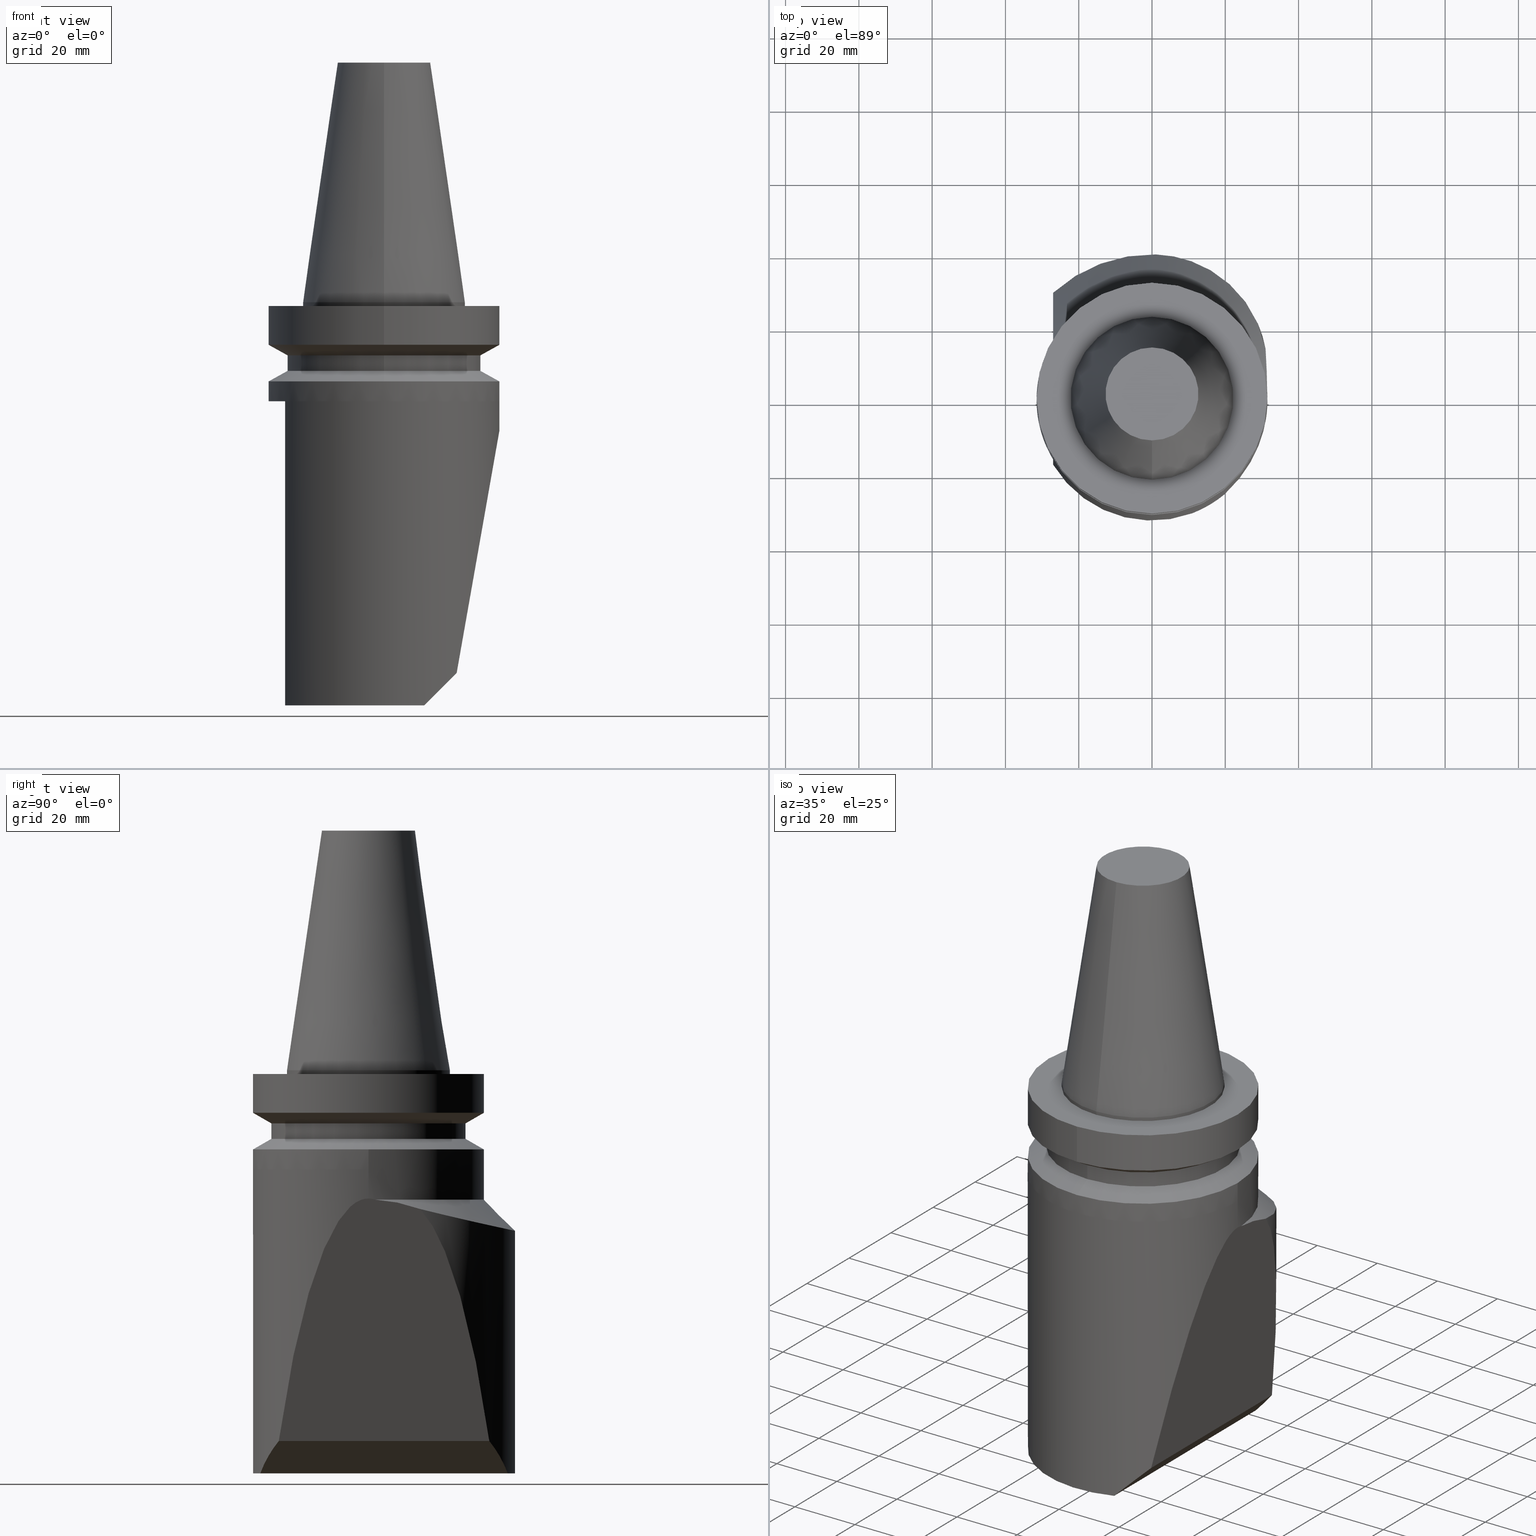
[diagram: canonical four-view strip — front | top / right | iso, engineering-drawing reading convention]
A machine part, canonical four-view strip (front | top / right | iso — engineering-drawing reading convention). The complete STEP part file that produces these views, byte-faithful:
ISO-10303-21;
HEADER;
FILE_DESCRIPTION((''),'1');
FILE_NAME('T:/21_DXF\X2\30C730FC30BF4F5C621057FA6E96\X0\/BBT40M-180-BH20L-110.stp','2017-05-02T05:50:26',(''),(''),'Spatial Interop R21 SP3','Kubotek KeyCreator 2011 V10.0.2 (22737)',' ');
FILE_SCHEMA(('automotive_design'));
ENDSEC;
DATA;
#1=MECHANICAL_DESIGN_GEOMETRIC_PRESENTATION_REPRESENTATION(' ',(#10,#11,#12,#13,#14,#15,#16,#17,#18,#19,#20,#21,#22,#23,#24,#25,#26,#27,#28,#29,#30,#31,#32,#33,#34,#35,#36,#37,#38,#39,#40,#41,#42,#43,#44,#45,#46,#47,#48,#49,#50,#51,#52,#53,#54,#55,#56,#57,#58,#59,#60,#61,#62,#63,#64,#65,#66,#67,#68,#69,#70,#71,#72,#73,#74,#75,#76),#6);
#2=PRODUCT_DEFINITION_CONTEXT('',#77,'design');
#3=APPLICATION_PROTOCOL_DEFINITION('INTERNATIONAL STANDARD','automotive_design',1994,#77);
#4=PRODUCT_CATEGORY_RELATIONSHIP('NONE','NONE',#78,#79);
#5=SHAPE_DEFINITION_REPRESENTATION(#80,#81);
#6= (GEOMETRIC_REPRESENTATION_CONTEXT(3)GLOBAL_UNCERTAINTY_ASSIGNED_CONTEXT((#84))GLOBAL_UNIT_ASSIGNED_CONTEXT((#86,#87,#88))REPRESENTATION_CONTEXT('NONE','WORKSPACE'));
#10=STYLED_ITEM('',(#90,#91),#92);
#11=STYLED_ITEM('',(#93),#94);
#12=STYLED_ITEM('',(#95),#96);
#13=STYLED_ITEM('',(#97),#98);
#14=STYLED_ITEM('',(#99),#100);
#15=STYLED_ITEM('',(#101,#102),#103);
#16=STYLED_ITEM('',(#104),#105);
#17=STYLED_ITEM('',(#106,#107),#108);
#18=STYLED_ITEM('',(#109),#110);
#19=STYLED_ITEM('',(#111),#112);
#20=STYLED_ITEM('',(#113,#114),#115);
#21=STYLED_ITEM('',(#116),#117);
#22=STYLED_ITEM('',(#118,#119),#120);
#23=STYLED_ITEM('',(#121,#122),#123);
#24=STYLED_ITEM('',(#124),#125);
#25=STYLED_ITEM('',(#126),#127);
#26=STYLED_ITEM('',(#128),#129);
#27=STYLED_ITEM('',(#130,#131),#132);
#28=STYLED_ITEM('',(#133),#134);
#29=STYLED_ITEM('',(#135),#136);
#30=STYLED_ITEM('',(#137),#138);
#31=STYLED_ITEM('',(#139),#140);
#32=STYLED_ITEM('',(#141),#142);
#33=STYLED_ITEM('',(#143),#144);
#34=STYLED_ITEM('',(#145),#146);
#35=STYLED_ITEM('',(#147),#148);
#36=STYLED_ITEM('',(#149),#150);
#37=STYLED_ITEM('',(#151,#152),#153);
#38=STYLED_ITEM('',(#154),#155);
#39=STYLED_ITEM('',(#156,#157),#158);
#40=STYLED_ITEM('',(#159),#160);
#41=STYLED_ITEM('',(#161),#162);
#42=STYLED_ITEM('',(#163,#164),#165);
#43=STYLED_ITEM('',(#166,#167),#168);
#44=STYLED_ITEM('',(#169,#170),#171);
#45=STYLED_ITEM('',(#172),#173);
#46=STYLED_ITEM('',(#174),#175);
#47=STYLED_ITEM('',(#176),#177);
#48=STYLED_ITEM('',(#178,#179),#180);
#49=STYLED_ITEM('',(#181,#182),#183);
#50=STYLED_ITEM('',(#184,#185),#186);
#51=STYLED_ITEM('',(#187,#188),#189);
#52=STYLED_ITEM('',(#190),#191);
#53=STYLED_ITEM('',(#192,#193),#194);
#54=STYLED_ITEM('',(#195),#196);
#55=STYLED_ITEM('',(#197),#198);
#56=STYLED_ITEM('',(#199,#200),#201);
#57=STYLED_ITEM('',(#202),#203);
#58=STYLED_ITEM('',(#204),#205);
#59=STYLED_ITEM('',(#206),#207);
#60=STYLED_ITEM('',(#208),#209);
#61=STYLED_ITEM('',(#210),#211);
#62=STYLED_ITEM('',(#212),#213);
#63=STYLED_ITEM('',(#214),#215);
#64=STYLED_ITEM('',(#216),#217);
#65=STYLED_ITEM('',(#218,#219),#220);
#66=STYLED_ITEM('',(#221),#222);
#67=STYLED_ITEM('',(#223,#224),#225);
#68=STYLED_ITEM('',(#226),#227);
#69=STYLED_ITEM('',(#228),#229);
#70=STYLED_ITEM('',(#230),#231);
#71=STYLED_ITEM('',(#232),#233);
#72=STYLED_ITEM('',(#234),#235);
#73=STYLED_ITEM('',(#236,#237),#238);
#74=STYLED_ITEM('',(#239,#240),#241);
#75=STYLED_ITEM('',(#242,#243),#244);
#76=STYLED_ITEM('',(#245),#246);
#77=APPLICATION_CONTEXT(' ');
#78=PRODUCT_CATEGORY('part','NONE');
#79=PRODUCT_RELATED_PRODUCT_CATEGORY('detail',' ',(#247));
#80=PRODUCT_DEFINITION_SHAPE('NONE','NONE',#248);
#81=ADVANCED_BREP_SHAPE_REPRESENTATION('Unnamed[1]',(#92,#249),#6);
#84=UNCERTAINTY_MEASURE_WITH_UNIT(LENGTH_MEASURE(1.0E-006),#86,'','');
#86= (CONVERSION_BASED_UNIT('MILLIMETRE',#252)LENGTH_UNIT()NAMED_UNIT(#255));
#87= (NAMED_UNIT(#257)PLANE_ANGLE_UNIT()SI_UNIT($,.RADIAN.));
#88= (NAMED_UNIT(#257)SOLID_ANGLE_UNIT()SI_UNIT($,.STERADIAN.));
#90=PRESENTATION_STYLE_ASSIGNMENT((#263));
#91=PRESENTATION_STYLE_ASSIGNMENT((#264));
#92=MANIFOLD_SOLID_BREP('Unnamed[1]',#265);
#93=PRESENTATION_STYLE_ASSIGNMENT((#266));
#94=EDGE_CURVE('Unnamed[1]',#267,#267,#268,.T.);
#95=PRESENTATION_STYLE_ASSIGNMENT((#269));
#96=EDGE_CURVE('Unnamed[1]',#270,#270,#271,.T.);
#97=PRESENTATION_STYLE_ASSIGNMENT((#272));
#98=EDGE_CURVE('Unnamed[1]',#273,#274,#275,.T.);
#99=PRESENTATION_STYLE_ASSIGNMENT((#276));
#100=EDGE_CURVE('Unnamed[1]',#277,#278,#279,.T.);
#101=PRESENTATION_STYLE_ASSIGNMENT((#280));
#102=PRESENTATION_STYLE_ASSIGNMENT((#281));
#103=ADVANCED_FACE('Unnamed[1]',(#282),#283,.F.);
#104=PRESENTATION_STYLE_ASSIGNMENT((#284));
#105=EDGE_CURVE('Unnamed[1]',#278,#285,#286,.T.);
#106=PRESENTATION_STYLE_ASSIGNMENT((#287));
#107=PRESENTATION_STYLE_ASSIGNMENT((#288));
#108=ADVANCED_FACE('Unnamed[1]',(#289),#290,.F.);
#109=PRESENTATION_STYLE_ASSIGNMENT((#291));
#110=EDGE_CURVE('Unnamed[1]',#292,#293,#294,.T.);
#111=PRESENTATION_STYLE_ASSIGNMENT((#295));
#112=EDGE_CURVE('Unnamed[1]',#296,#297,#298,.T.);
#113=PRESENTATION_STYLE_ASSIGNMENT((#299));
#114=PRESENTATION_STYLE_ASSIGNMENT((#300));
#115=ADVANCED_FACE('Unnamed[1]',(#301),#302,.T.);
#116=PRESENTATION_STYLE_ASSIGNMENT((#303));
#117=EDGE_CURVE('Unnamed[1]',#304,#304,#305,.T.);
#118=PRESENTATION_STYLE_ASSIGNMENT((#306));
#119=PRESENTATION_STYLE_ASSIGNMENT((#307));
#120=ADVANCED_FACE('Unnamed[1]',(#308,#309),#310,.T.);
#121=PRESENTATION_STYLE_ASSIGNMENT((#311));
#122=PRESENTATION_STYLE_ASSIGNMENT((#312));
#123=ADVANCED_FACE('Unnamed[1]',(#313),#314,.F.);
#124=PRESENTATION_STYLE_ASSIGNMENT((#315));
#125=EDGE_CURVE('Unnamed[1]',#316,#274,#317,.T.);
#126=PRESENTATION_STYLE_ASSIGNMENT((#318));
#127=EDGE_CURVE('Unnamed[1]',#319,#319,#320,.T.);
#128=PRESENTATION_STYLE_ASSIGNMENT((#321));
#129=EDGE_CURVE('Unnamed[1]',#322,#322,#323,.T.);
#130=PRESENTATION_STYLE_ASSIGNMENT((#324));
#131=PRESENTATION_STYLE_ASSIGNMENT((#325));
#132=ADVANCED_FACE('Unnamed[1]',(#326),#327,.F.);
#133=PRESENTATION_STYLE_ASSIGNMENT((#328));
#134=EDGE_CURVE('Unnamed[1]',#329,#330,#331,.T.);
#135=PRESENTATION_STYLE_ASSIGNMENT((#332));
#136=EDGE_CURVE('Unnamed[1]',#333,#334,#335,.T.);
#137=PRESENTATION_STYLE_ASSIGNMENT((#336));
#138=EDGE_CURVE('Unnamed[1]',#337,#338,#339,.T.);
#139=PRESENTATION_STYLE_ASSIGNMENT((#340));
#140=EDGE_CURVE('Unnamed[1]',#330,#341,#342,.T.);
#141=PRESENTATION_STYLE_ASSIGNMENT((#343));
#142=EDGE_CURVE('Unnamed[1]',#274,#278,#344,.T.);
#143=PRESENTATION_STYLE_ASSIGNMENT((#345));
#144=EDGE_CURVE('Unnamed[1]',#273,#296,#346,.T.);
#145=PRESENTATION_STYLE_ASSIGNMENT((#347));
#146=EDGE_CURVE('Unnamed[1]',#348,#349,#350,.T.);
#147=PRESENTATION_STYLE_ASSIGNMENT((#351));
#148=EDGE_CURVE('Unnamed[1]',#352,#352,#353,.T.);
#149=PRESENTATION_STYLE_ASSIGNMENT((#354));
#150=EDGE_CURVE('Unnamed[1]',#349,#297,#355,.T.);
#151=PRESENTATION_STYLE_ASSIGNMENT((#356));
#152=PRESENTATION_STYLE_ASSIGNMENT((#357));
#153=ADVANCED_FACE('Unnamed[1]',(#358,#359),#360,.T.);
#154=PRESENTATION_STYLE_ASSIGNMENT((#361));
#155=EDGE_CURVE('Unnamed[1]',#334,#362,#363,.T.);
#156=PRESENTATION_STYLE_ASSIGNMENT((#364));
#157=PRESENTATION_STYLE_ASSIGNMENT((#365));
#158=ADVANCED_FACE('Unnamed[1]',(#366),#367,.T.);
#159=PRESENTATION_STYLE_ASSIGNMENT((#368));
#160=EDGE_CURVE('Unnamed[1]',#293,#369,#370,.T.);
#161=PRESENTATION_STYLE_ASSIGNMENT((#371));
#162=EDGE_CURVE('Unnamed[1]',#337,#348,#372,.T.);
#163=PRESENTATION_STYLE_ASSIGNMENT((#373));
#164=PRESENTATION_STYLE_ASSIGNMENT((#374));
#165=ADVANCED_FACE('Unnamed[1]',(#375),#376,.T.);
#166=PRESENTATION_STYLE_ASSIGNMENT((#377));
#167=PRESENTATION_STYLE_ASSIGNMENT((#378));
#168=ADVANCED_FACE('Unnamed[1]',(#379,#380),#381,.T.);
#169=PRESENTATION_STYLE_ASSIGNMENT((#382));
#170=PRESENTATION_STYLE_ASSIGNMENT((#383));
#171=ADVANCED_FACE('Unnamed[1]',(#384),#385,.T.);
#172=PRESENTATION_STYLE_ASSIGNMENT((#386));
#173=EDGE_CURVE('Unnamed[1]',#285,#337,#387,.T.);
#174=PRESENTATION_STYLE_ASSIGNMENT((#388));
#175=EDGE_CURVE('Unnamed[1]',#389,#389,#390,.T.);
#176=PRESENTATION_STYLE_ASSIGNMENT((#391));
#177=EDGE_CURVE('Unnamed[1]',#316,#392,#393,.T.);
#178=PRESENTATION_STYLE_ASSIGNMENT((#394));
#179=PRESENTATION_STYLE_ASSIGNMENT((#395));
#180=ADVANCED_FACE('Unnamed[1]',(#396,#397),#398,.T.);
#181=PRESENTATION_STYLE_ASSIGNMENT((#399));
#182=PRESENTATION_STYLE_ASSIGNMENT((#400));
#183=ADVANCED_FACE('Unnamed[1]',(#401,#402),#403,.T.);
#184=PRESENTATION_STYLE_ASSIGNMENT((#404));
#185=PRESENTATION_STYLE_ASSIGNMENT((#405));
#186=ADVANCED_FACE('Unnamed[1]',(#406),#407,.F.);
#187=PRESENTATION_STYLE_ASSIGNMENT((#408));
#188=PRESENTATION_STYLE_ASSIGNMENT((#409));
#189=ADVANCED_FACE('Unnamed[1]',(#410),#411,.F.);
#190=PRESENTATION_STYLE_ASSIGNMENT((#412));
#191=EDGE_CURVE('Unnamed[1]',#413,#413,#414,.T.);
#192=PRESENTATION_STYLE_ASSIGNMENT((#415));
#193=PRESENTATION_STYLE_ASSIGNMENT((#416));
#194=ADVANCED_FACE('Unnamed[1]',(#417),#418,.T.);
#195=PRESENTATION_STYLE_ASSIGNMENT((#419));
#196=EDGE_CURVE('Unnamed[1]',#420,#421,#422,.T.);
#197=PRESENTATION_STYLE_ASSIGNMENT((#423));
#198=EDGE_CURVE('Unnamed[1]',#421,#362,#424,.T.);
#199=PRESENTATION_STYLE_ASSIGNMENT((#425));
#200=PRESENTATION_STYLE_ASSIGNMENT((#426));
#201=ADVANCED_FACE('Unnamed[1]',(#427),#428,.T.);
#202=PRESENTATION_STYLE_ASSIGNMENT((#429));
#203=EDGE_CURVE('Unnamed[1]',#277,#273,#430,.T.);
#204=PRESENTATION_STYLE_ASSIGNMENT((#431));
#205=EDGE_CURVE('Unnamed[1]',#329,#349,#432,.T.);
#206=PRESENTATION_STYLE_ASSIGNMENT((#433));
#207=EDGE_CURVE('Unnamed[1]',#341,#316,#434,.T.);
#208=PRESENTATION_STYLE_ASSIGNMENT((#435));
#209=EDGE_CURVE('Unnamed[1]',#338,#330,#436,.T.);
#210=PRESENTATION_STYLE_ASSIGNMENT((#437));
#211=EDGE_CURVE('Unnamed[1]',#296,#341,#438,.T.);
#212=PRESENTATION_STYLE_ASSIGNMENT((#439));
#213=EDGE_CURVE('Unnamed[1]',#362,#292,#440,.T.);
#214=PRESENTATION_STYLE_ASSIGNMENT((#441));
#215=EDGE_CURVE('Unnamed[1]',#369,#333,#442,.T.);
#216=PRESENTATION_STYLE_ASSIGNMENT((#443));
#217=EDGE_CURVE('Unnamed[1]',#420,#277,#444,.T.);
#218=PRESENTATION_STYLE_ASSIGNMENT((#445));
#219=PRESENTATION_STYLE_ASSIGNMENT((#446));
#220=ADVANCED_FACE('Unnamed[1]',(#447),#448,.T.);
#221=PRESENTATION_STYLE_ASSIGNMENT((#449));
#222=EDGE_CURVE('Unnamed[1]',#338,#392,#450,.T.);
#223=PRESENTATION_STYLE_ASSIGNMENT((#451));
#224=PRESENTATION_STYLE_ASSIGNMENT((#452));
#225=ADVANCED_FACE('Unnamed[1]',(#453,#454),#455,.T.);
#226=PRESENTATION_STYLE_ASSIGNMENT((#456));
#227=EDGE_CURVE('Unnamed[1]',#421,#333,#457,.T.);
#228=PRESENTATION_STYLE_ASSIGNMENT((#458));
#229=EDGE_CURVE('Unnamed[1]',#369,#420,#459,.T.);
#230=PRESENTATION_STYLE_ASSIGNMENT((#460));
#231=EDGE_CURVE('Unnamed[1]',#297,#329,#461,.T.);
#232=PRESENTATION_STYLE_ASSIGNMENT((#462));
#233=EDGE_CURVE('Unnamed[1]',#392,#285,#463,.T.);
#234=PRESENTATION_STYLE_ASSIGNMENT((#464));
#235=EDGE_CURVE('Unnamed[1]',#348,#292,#465,.T.);
#236=PRESENTATION_STYLE_ASSIGNMENT((#466));
#237=PRESENTATION_STYLE_ASSIGNMENT((#467));
#238=ADVANCED_FACE('Unnamed[1]',(#468,#469),#470,.T.);
#239=PRESENTATION_STYLE_ASSIGNMENT((#471));
#240=PRESENTATION_STYLE_ASSIGNMENT((#472));
#241=ADVANCED_FACE('Unnamed[1]',(#473,#474),#475,.T.);
#242=PRESENTATION_STYLE_ASSIGNMENT((#476));
#243=PRESENTATION_STYLE_ASSIGNMENT((#477));
#244=ADVANCED_FACE('Unnamed[1]',(#478),#479,.T.);
#245=PRESENTATION_STYLE_ASSIGNMENT((#480));
#246=EDGE_CURVE('Unnamed[1]',#293,#334,#481,.T.);
#247=PRODUCT('Unnamed[1]','Unnamed[1]','PART-Unnamed[1]-DESC',(#482));
#248=PRODUCT_DEFINITION('NONE','NONE',#483,#2);
#249=AXIS2_PLACEMENT_3D('',#484,#485,#486);
#252=LENGTH_MEASURE_WITH_UNIT(LENGTH_MEASURE(1.0),#487);
#255=DIMENSIONAL_EXPONENTS(1.0,0.0,0.0,0.0,0.0,0.0,0.0);
#257=DIMENSIONAL_EXPONENTS(0.0,0.0,0.0,0.0,0.0,0.0,0.0);
#263=SURFACE_STYLE_USAGE(.BOTH.,#488);
#264=CURVE_STYLE('',#489,POSITIVE_LENGTH_MEASURE(1000.0),#490);
#265=CLOSED_SHELL('',(#220,#132,#186,#103,#158,#238,#171,#123,#165,#108,#189,#115,#244,#194,#153,#241,#180,#168,#120,#225,#183,#201));
#266=CURVE_STYLE('',#491,POSITIVE_LENGTH_MEASURE(1000.0),#492);
#267=VERTEX_POINT('',#493);
#268=CIRCLE('',#494,31.5000000000001);
#269=CURVE_STYLE('',#495,POSITIVE_LENGTH_MEASURE(1000.0),#496);
#270=VERTEX_POINT('',#497);
#271=CIRCLE('',#498,31.5000000000001);
#272=CURVE_STYLE('',#499,POSITIVE_LENGTH_MEASURE(1000.0),#500);
#273=VERTEX_POINT('',#501);
#274=VERTEX_POINT('',#502);
#275=CIRCLE('',#503,39.9999999999955);
#276=CURVE_STYLE('',#504,POSITIVE_LENGTH_MEASURE(1000.0),#505);
#277=VERTEX_POINT('',#506);
#278=VERTEX_POINT('',#507);
#279=CIRCLE('',#508,40.0000000000002);
#280=SURFACE_STYLE_USAGE(.BOTH.,#509);
#281=CURVE_STYLE('',#510,POSITIVE_LENGTH_MEASURE(1000.0),#511);
#282=FACE_OUTER_BOUND('',#512,.T.);
#283=PLANE('',#513);
#284=CURVE_STYLE('',#514,POSITIVE_LENGTH_MEASURE(1000.0),#515);
#285=VERTEX_POINT('',#516);
#286=CIRCLE('',#517,31.5);
#287=SURFACE_STYLE_USAGE(.BOTH.,#518);
#288=CURVE_STYLE('',#519,POSITIVE_LENGTH_MEASURE(1000.0),#520);
#289=FACE_OUTER_BOUND('',#521,.T.);
#290=PLANE('',#522);
#291=CURVE_STYLE('',#523,POSITIVE_LENGTH_MEASURE(1000.0),#524);
#292=VERTEX_POINT('',#525);
#293=VERTEX_POINT('',#526);
#294=LINE('',#527,#528);
#295=CURVE_STYLE('',#529,POSITIVE_LENGTH_MEASURE(1000.0),#530);
#296=VERTEX_POINT('',#531);
#297=VERTEX_POINT('',#532);
#298=LINE('',#533,#534);
#299=SURFACE_STYLE_USAGE(.BOTH.,#535);
#300=CURVE_STYLE('',#536,POSITIVE_LENGTH_MEASURE(1000.0),#537);
#301=FACE_OUTER_BOUND('',#538,.T.);
#302=CYLINDRICAL_SURFACE('',#539,31.5);
#303=CURVE_STYLE('',#540,POSITIVE_LENGTH_MEASURE(1000.0),#541);
#304=VERTEX_POINT('',#542);
#305=CIRCLE('',#543,22.2250000000001);
#306=SURFACE_STYLE_USAGE(.BOTH.,#544);
#307=CURVE_STYLE('',#545,POSITIVE_LENGTH_MEASURE(1000.0),#546);
#308=FACE_BOUND('',#547,.T.);
#309=FACE_BOUND('',#548,.T.);
#310=CONICAL_SURFACE('',#549,29.0000000000001,1.0471975511966);
#311=SURFACE_STYLE_USAGE(.BOTH.,#550);
#312=CURVE_STYLE('',#551,POSITIVE_LENGTH_MEASURE(1000.0),#552);
#313=FACE_OUTER_BOUND('',#553,.T.);
#314=PLANE('',#554);
#315=CURVE_STYLE('',#555,POSITIVE_LENGTH_MEASURE(1000.0),#556);
#316=VERTEX_POINT('',#557);
#317=B_SPLINE_CURVE_WITH_KNOTS('',3,(#558,#559,#560,#561,#562,#563,#564,#565,#566,#567,#568,#569,#570,#571,#572,#573,#574,#575,#576,#577,#578,#579,#580,#581,#582,#583),.UNSPECIFIED.,.F.,.F.,(4,2,2,2,2,2,2,2,2,2,2,2,4),(13.5523629707951,16.8695139117605,20.2434166941126,23.6173194764646,26.9912222588167,30.6819251575849,34.372628056353,38.0633309551212,41.7540338538893,45.4447367526574,49.1354396514256,52.8261425501937,55.5120066657798),.UNSPECIFIED.);
#318=CURVE_STYLE('',#584,POSITIVE_LENGTH_MEASURE(1000.0),#585);
#319=VERTEX_POINT('',#586);
#320=CIRCLE('',#587,26.5000000000001);
#321=CURVE_STYLE('',#588,POSITIVE_LENGTH_MEASURE(1000.0),#589);
#322=VERTEX_POINT('',#590);
#323=CIRCLE('',#591,12.6875000000001);
#324=SURFACE_STYLE_USAGE(.BOTH.,#592);
#325=CURVE_STYLE('',#593,POSITIVE_LENGTH_MEASURE(1000.0),#594);
#326=FACE_OUTER_BOUND('',#595,.T.);
#327=PLANE('',#596);
#328=CURVE_STYLE('',#597,POSITIVE_LENGTH_MEASURE(1000.0),#598);
#329=VERTEX_POINT('',#599);
#330=VERTEX_POINT('',#600);
#331=LINE('',#601,#602);
#332=CURVE_STYLE('',#603,POSITIVE_LENGTH_MEASURE(1000.0),#604);
#333=VERTEX_POINT('',#605);
#334=VERTEX_POINT('',#606);
#335=LINE('',#607,#608);
#336=CURVE_STYLE('',#609,POSITIVE_LENGTH_MEASURE(1000.0),#610);
#337=VERTEX_POINT('',#611);
#338=VERTEX_POINT('',#612);
#339=ELLIPSE('',#613,44.5477272147525,31.5);
#340=CURVE_STYLE('',#614,POSITIVE_LENGTH_MEASURE(1000.0),#615);
#341=VERTEX_POINT('',#616);
#342=ELLIPSE('',#617,181.401270219024,31.4999999999999);
#343=CURVE_STYLE('',#618,POSITIVE_LENGTH_MEASURE(1000.0),#619);
#344=LINE('',#620,#621);
#345=CURVE_STYLE('',#622,POSITIVE_LENGTH_MEASURE(1000.0),#623);
#346=(B_SPLINE_CURVE(3,(#625,#626,#627,#628,#629,#630,#631),.UNSPECIFIED.,.F.,.F.)B_SPLINE_CURVE_WITH_KNOTS((4,3,4),(-0.221250303881659,5.25036179970138,15.7860949839274),.UNSPECIFIED.)RATIONAL_B_SPLINE_CURVE((1.0,1.0,1.0,1.0,1.00262050936758,1.00001735789944,0.992190545595578))BOUNDED_CURVE()REPRESENTATION_ITEM('')GEOMETRIC_REPRESENTATION_ITEM()CURVE());
#347=CURVE_STYLE('',#638,POSITIVE_LENGTH_MEASURE(1000.0),#639);
#348=VERTEX_POINT('',#640);
#349=VERTEX_POINT('',#641);
#350=LINE('',#642,#643);
#351=CURVE_STYLE('',#644,POSITIVE_LENGTH_MEASURE(1000.0),#645);
#352=VERTEX_POINT('',#646);
#353=CIRCLE('',#647,31.5000000000001);
#354=CURVE_STYLE('',#648,POSITIVE_LENGTH_MEASURE(1000.0),#649);
#355=LINE('',#650,#651);
#356=SURFACE_STYLE_USAGE(.BOTH.,#652);
#357=CURVE_STYLE('',#653,POSITIVE_LENGTH_MEASURE(1000.0),#654);
#358=FACE_BOUND('',#655,.T.);
#359=FACE_BOUND('',#656,.T.);
#360=CONICAL_SURFACE('',#657,17.4562500000001,0.14481249823894);
#361=CURVE_STYLE('',#658,POSITIVE_LENGTH_MEASURE(1000.0),#659);
#362=VERTEX_POINT('',#660);
#363=LINE('',#661,#662);
#364=SURFACE_STYLE_USAGE(.BOTH.,#663);
#365=CURVE_STYLE('',#664,POSITIVE_LENGTH_MEASURE(1000.0),#665);
#366=FACE_OUTER_BOUND('',#666,.T.);
#367=CYLINDRICAL_SURFACE('',#667,31.5);
#368=CURVE_STYLE('',#668,POSITIVE_LENGTH_MEASURE(1000.0),#669);
#369=VERTEX_POINT('',#670);
#370=LINE('',#671,#672);
#371=CURVE_STYLE('',#673,POSITIVE_LENGTH_MEASURE(1000.0),#674);
#372=CIRCLE('',#675,31.5);
#373=SURFACE_STYLE_USAGE(.BOTH.,#676);
#374=CURVE_STYLE('',#677,POSITIVE_LENGTH_MEASURE(1000.0),#678);
#375=FACE_OUTER_BOUND('',#679,.T.);
#376=PLANE('',#680);
#377=SURFACE_STYLE_USAGE(.BOTH.,#681);
#378=CURVE_STYLE('',#682,POSITIVE_LENGTH_MEASURE(1000.0),#683);
#379=FACE_BOUND('',#684,.T.);
#380=FACE_BOUND('',#685,.T.);
#381=CYLINDRICAL_SURFACE('',#686,31.5000000000001);
#382=SURFACE_STYLE_USAGE(.BOTH.,#687);
#383=CURVE_STYLE('',#688,POSITIVE_LENGTH_MEASURE(1000.0),#689);
#384=FACE_OUTER_BOUND('',#690,.T.);
#385=CONICAL_SURFACE('',#691,35.7499999999976,0.785398163397449);
#386=CURVE_STYLE('',#692,POSITIVE_LENGTH_MEASURE(1000.0),#693);
#387=LINE('',#694,#695);
#388=CURVE_STYLE('',#696,POSITIVE_LENGTH_MEASURE(1000.0),#697);
#389=VERTEX_POINT('',#698);
#390=CIRCLE('',#699,22.2250000000001);
#391=CURVE_STYLE('',#700,POSITIVE_LENGTH_MEASURE(1000.0),#701);
#392=VERTEX_POINT('',#702);
#393=ELLIPSE('',#703,181.401270219024,31.5);
#394=SURFACE_STYLE_USAGE(.BOTH.,#704);
#395=CURVE_STYLE('',#705,POSITIVE_LENGTH_MEASURE(1000.0),#706);
#396=FACE_OUTER_BOUND('',#707,.T.);
#397=FACE_BOUND('',#708,.T.);
#398=PLANE('',#709);
#399=SURFACE_STYLE_USAGE(.BOTH.,#710);
#400=CURVE_STYLE('',#711,POSITIVE_LENGTH_MEASURE(1000.0),#712);
#401=FACE_BOUND('',#713,.T.);
#402=FACE_BOUND('',#714,.T.);
#403=CONICAL_SURFACE('',#715,29.0000000000001,1.0471975511966);
#404=SURFACE_STYLE_USAGE(.BOTH.,#716);
#405=CURVE_STYLE('',#717,POSITIVE_LENGTH_MEASURE(1000.0),#718);
#406=FACE_OUTER_BOUND('',#719,.T.);
#407=PLANE('',#720);
#408=SURFACE_STYLE_USAGE(.BOTH.,#721);
#409=CURVE_STYLE('',#722,POSITIVE_LENGTH_MEASURE(1000.0),#723);
#410=FACE_OUTER_BOUND('',#724,.T.);
#411=PLANE('',#725);
#412=CURVE_STYLE('',#726,POSITIVE_LENGTH_MEASURE(1000.0),#727);
#413=VERTEX_POINT('',#728);
#414=CIRCLE('',#729,26.5000000000001);
#415=SURFACE_STYLE_USAGE(.BOTH.,#730);
#416=CURVE_STYLE('',#731,POSITIVE_LENGTH_MEASURE(1000.0),#732);
#417=FACE_OUTER_BOUND('',#733,.T.);
#418=PLANE('',#734);
#419=CURVE_STYLE('',#735,POSITIVE_LENGTH_MEASURE(1000.0),#736);
#420=VERTEX_POINT('',#737);
#421=VERTEX_POINT('',#738);
#422=LINE('',#739,#740);
#423=CURVE_STYLE('',#741,POSITIVE_LENGTH_MEASURE(1000.0),#742);
#424=LINE('',#743,#744);
#425=SURFACE_STYLE_USAGE(.BOTH.,#745);
#426=CURVE_STYLE('',#746,POSITIVE_LENGTH_MEASURE(1000.0),#747);
#427=FACE_OUTER_BOUND('',#748,.T.);
#428=CYLINDRICAL_SURFACE('',#749,39.9999999999978);
#429=CURVE_STYLE('',#750,POSITIVE_LENGTH_MEASURE(1000.0),#751);
#430=LINE('',#752,#753);
#431=CURVE_STYLE('',#754,POSITIVE_LENGTH_MEASURE(1000.0),#755);
#432=CIRCLE('',#756,31.5);
#433=CURVE_STYLE('',#757,POSITIVE_LENGTH_MEASURE(1000.0),#758);
#434=(B_SPLINE_CURVE(2,(#760,#761,#762),.UNSPECIFIED.,.F.,.F.)B_SPLINE_CURVE_WITH_KNOTS((3,3),(9.46221466645807E-013,13.8067711859045),.UNSPECIFIED.)RATIONAL_B_SPLINE_CURVE((1.0,1.02443991961309,1.02327325416865))BOUNDED_CURVE()REPRESENTATION_ITEM('')GEOMETRIC_REPRESENTATION_ITEM()CURVE());
#435=CURVE_STYLE('',#769,POSITIVE_LENGTH_MEASURE(1000.0),#770);
#436=ELLIPSE('',#771,181.401270219024,31.5);
#437=CURVE_STYLE('',#772,POSITIVE_LENGTH_MEASURE(1000.0),#773);
#438=CIRCLE('',#774,31.4999999999998);
#439=CURVE_STYLE('',#775,POSITIVE_LENGTH_MEASURE(1000.0),#776);
#440=LINE('',#777,#778);
#441=CURVE_STYLE('',#779,POSITIVE_LENGTH_MEASURE(1000.0),#780);
#442=LINE('',#781,#782);
#443=CURVE_STYLE('',#783,POSITIVE_LENGTH_MEASURE(1000.0),#784);
#444=LINE('',#785,#786);
#445=SURFACE_STYLE_USAGE(.BOTH.,#787);
#446=CURVE_STYLE('',#788,POSITIVE_LENGTH_MEASURE(1000.0),#789);
#447=FACE_OUTER_BOUND('',#790,.T.);
#448=PLANE('',#791);
#449=CURVE_STYLE('',#792,POSITIVE_LENGTH_MEASURE(1000.0),#793);
#450=LINE('',#794,#795);
#451=SURFACE_STYLE_USAGE(.BOTH.,#796);
#452=CURVE_STYLE('',#797,POSITIVE_LENGTH_MEASURE(1000.0),#798);
#453=FACE_BOUND('',#799,.T.);
#454=FACE_BOUND('',#800,.T.);
#455=CYLINDRICAL_SURFACE('',#801,26.5000000000001);
#456=CURVE_STYLE('',#802,POSITIVE_LENGTH_MEASURE(1000.0),#803);
#457=LINE('',#804,#805);
#458=CURVE_STYLE('',#806,POSITIVE_LENGTH_MEASURE(1000.0),#807);
#459=LINE('',#808,#809);
#460=CURVE_STYLE('',#810,POSITIVE_LENGTH_MEASURE(1000.0),#811);
#461=CIRCLE('',#812,31.5000000000001);
#462=CURVE_STYLE('',#813,POSITIVE_LENGTH_MEASURE(1000.0),#814);
#463=ELLIPSE('',#815,44.5477272147525,31.5);
#464=CURVE_STYLE('',#816,POSITIVE_LENGTH_MEASURE(1000.0),#817);
#465=LINE('',#818,#819);
#466=SURFACE_STYLE_USAGE(.BOTH.,#820);
#467=CURVE_STYLE('',#821,POSITIVE_LENGTH_MEASURE(1000.0),#822);
#468=FACE_BOUND('',#823,.T.);
#469=FACE_BOUND('',#824,.T.);
#470=CYLINDRICAL_SURFACE('',#825,31.4999999999999);
#471=SURFACE_STYLE_USAGE(.BOTH.,#826);
#472=CURVE_STYLE('',#827,POSITIVE_LENGTH_MEASURE(1000.0),#828);
#473=FACE_BOUND('',#829,.T.);
#474=FACE_BOUND('',#830,.T.);
#475=CYLINDRICAL_SURFACE('',#831,22.2250000000001);
#476=SURFACE_STYLE_USAGE(.BOTH.,#832);
#477=CURVE_STYLE('',#833,POSITIVE_LENGTH_MEASURE(1000.0),#834);
#478=FACE_OUTER_BOUND('',#835,.T.);
#479=PLANE('',#836);
#480=CURVE_STYLE('',#837,POSITIVE_LENGTH_MEASURE(1000.0),#838);
#481=LINE('',#839,#840);
#482=PRODUCT_CONTEXT('',#77,'mechanical');
#483=PRODUCT_DEFINITION_FORMATION_WITH_SPECIFIED_SOURCE(' ','NONE',#247,.NOT_KNOWN.);
#484=CARTESIAN_POINT('',(0.0,0.0,0.0));
#485=DIRECTION('',(0.0,0.0,1.0));
#486=DIRECTION('',(1.0,0.0,0.0));
#487= (NAMED_UNIT(#255)LENGTH_UNIT()SI_UNIT(.MILLI.,.METRE.));
#488=SURFACE_SIDE_STYLE('',(#842));
#489=DRAUGHTING_PRE_DEFINED_CURVE_FONT('continuous');
#490=COLOUR_RGB('',0.0,1.0,0.0);
#491=DRAUGHTING_PRE_DEFINED_CURVE_FONT('continuous');
#492=COLOUR_RGB('',0.0,1.0,0.0);
#493=CARTESIAN_POINT('',(-3.91886975727154E-015,-31.5000000000001,-0.999999999999882));
#494=AXIS2_PLACEMENT_3D('',#843,#844,#845);
#495=DRAUGHTING_PRE_DEFINED_CURVE_FONT('continuous');
#496=COLOUR_RGB('',0.0,1.0,0.0);
#497=CARTESIAN_POINT('',(31.4999999533057,0.00171515177132035,-21.5999999999999));
#498=AXIS2_PLACEMENT_3D('',#846,#847,#848);
#499=DRAUGHTING_PRE_DEFINED_CURVE_FONT('continuous');
#500=COLOUR_RGB('',0.0,1.0,0.0);
#501=CARTESIAN_POINT('',(-27.0000000001167,29.5127091266345,-43.799999999997));
#502=CARTESIAN_POINT('',(1.00783010340634,39.9873014653691,-43.799999999997));
#503=AXIS2_PLACEMENT_3D('',#849,#850,#851);
#504=DRAUGHTING_PRE_DEFINED_CURVE_FONT('continuous');
#505=COLOUR_RGB('',0.0,1.0,0.0);
#506=CARTESIAN_POINT('',(-27.0000000001167,29.5127091266377,-110.000000000002));
#507=CARTESIAN_POINT('',(1.0078301027153,39.9873014653912,-109.999999999997));
#508=AXIS2_PLACEMENT_3D('',#852,#853,#854);
#509=SURFACE_SIDE_STYLE('',(#855));
#510=DRAUGHTING_PRE_DEFINED_CURVE_FONT('continuous');
#511=COLOUR_RGB('',0.0,1.0,0.0);
#512=EDGE_LOOP('',(#856,#857,#858,#859));
#513=AXIS2_PLACEMENT_3D('',#860,#861,#862);
#514=DRAUGHTING_PRE_DEFINED_CURVE_FONT('continuous');
#515=COLOUR_RGB('',0.0,1.0,0.0);
#516=CARTESIAN_POINT('',(11.0,38.0203724434856,-110.0));
#517=AXIS2_PLACEMENT_3D('',#863,#864,#865);
#518=SURFACE_SIDE_STYLE('',(#866));
#519=DRAUGHTING_PRE_DEFINED_CURVE_FONT('continuous');
#520=COLOUR_RGB('',0.0,1.0,0.0);
#521=EDGE_LOOP('',(#867,#868,#869,#870));
#522=AXIS2_PLACEMENT_3D('',#871,#872,#873);
#523=DRAUGHTING_PRE_DEFINED_CURVE_FONT('continuous');
#524=COLOUR_RGB('',0.0,1.0,0.0);
#525=CARTESIAN_POINT('',(-27.0000000001169,0.00342815723780592,-110.0));
#526=CARTESIAN_POINT('',(-7.00000000011688,0.00342815723779767,-110.0));
#527=CARTESIAN_POINT('',(-12.3088000000584,0.00342815723780146,-110.0));
#528=VECTOR('',#874,1.0);
#529=DRAUGHTING_PRE_DEFINED_CURVE_FONT('continuous');
#530=COLOUR_RGB('',0.0,1.0,0.0);
#531=CARTESIAN_POINT('',(-27.0000000001168,16.2249807393932,-35.3000000000013));
#532=CARTESIAN_POINT('',(-27.0000000001168,16.2249807393938,-26.9999999999999));
#533=CARTESIAN_POINT('',(-27.0000000001168,16.2249807393935,-28.4500000000006));
#534=VECTOR('',#875,1.0);
#535=SURFACE_SIDE_STYLE('',(#876));
#536=DRAUGHTING_PRE_DEFINED_CURVE_FONT('continuous');
#537=COLOUR_RGB('',0.0,1.0,0.0);
#538=EDGE_LOOP('',(#877,#878,#879,#880,#881));
#539=AXIS2_PLACEMENT_3D('',#882,#883,#884);
#540=DRAUGHTING_PRE_DEFINED_CURVE_FONT('continuous');
#541=COLOUR_RGB('',0.0,1.0,0.0);
#542=CARTESIAN_POINT('',(-2.721777511105E-015,-22.2250000000001,1.16408615232721E-013));
#543=AXIS2_PLACEMENT_3D('',#885,#886,#887);
#544=SURFACE_SIDE_STYLE('',(#888));
#545=DRAUGHTING_PRE_DEFINED_CURVE_FONT('continuous');
#546=COLOUR_RGB('',0.0,1.0,0.0);
#547=EDGE_LOOP('',(#889));
#548=EDGE_LOOP('',(#890));
#549=AXIS2_PLACEMENT_3D('',#891,#892,#893);
#550=SURFACE_SIDE_STYLE('',(#894));
#551=DRAUGHTING_PRE_DEFINED_CURVE_FONT('continuous');
#552=COLOUR_RGB('',0.0,1.0,0.0);
#553=EDGE_LOOP('',(#895,#896,#897,#898));
#554=AXIS2_PLACEMENT_3D('',#899,#900,#901);
#555=DRAUGHTING_PRE_DEFINED_CURVE_FONT('continuous');
#556=COLOUR_RGB('',0.0,1.0,0.0);
#557=CARTESIAN_POINT('',(30.9958754829096,14.1164222816535,-37.8590322085949));
#558=CARTESIAN_POINT('',(30.9958753131781,14.1164222557077,-37.8590321894029));
#559=CARTESIAN_POINT('',(30.793817664624,15.2321819400384,-38.1376004738719));
#560=CARTESIAN_POINT('',(30.531052716232,16.3386153421072,-38.4104099191008));
#561=CARTESIAN_POINT('',(29.883294147766,18.5318091823496,-38.9451594489947));
#562=CARTESIAN_POINT('',(29.4962819300553,19.6179070546009,-39.2068371943069));
#563=CARTESIAN_POINT('',(28.6110384234499,21.7310798426322,-39.7107580826852));
#564=CARTESIAN_POINT('',(28.1127469460289,22.7582730164203,-39.9530332234781));
#565=CARTESIAN_POINT('',(27.0189601454885,24.7362016561597,-40.4152995267619));
#566=CARTESIAN_POINT('',(26.423453647462,25.6869304566385,-40.6352927677509));
#567=CARTESIAN_POINT('',(25.0944725985865,27.5816694207976,-41.0702405416985));
#568=CARTESIAN_POINT('',(24.3326178748947,28.5461225747869,-41.289532357557));
#569=CARTESIAN_POINT('',(22.6827553927543,30.3958583547623,-41.7067702003015));
#570=CARTESIAN_POINT('',(21.7947600427699,31.2811502292468,-41.9047242919041));
#571=CARTESIAN_POINT('',(19.9066897539899,32.9484663267577,-42.27500251672));
#572=CARTESIAN_POINT('',(18.9064817884331,33.7306236058766,-42.4473612098164));
#573=CARTESIAN_POINT('',(16.8118677124289,35.172277923217,-42.7632716325601));
#574=CARTESIAN_POINT('',(15.7174650051157,35.8317788330738,-42.9068282581538));
#575=CARTESIAN_POINT('',(13.4560752659673,37.0132772020049,-43.1628960990959));
#576=CARTESIAN_POINT('',(12.2876130925889,37.5360467762953,-43.2755771208803));
#577=CARTESIAN_POINT('',(9.89895291167647,38.4348349174581,-43.4687124797495));
#578=CARTESIAN_POINT('',(8.67875334567884,38.8108491102096,-43.5491678977451));
#579=CARTESIAN_POINT('',(6.21254709323926,39.4107862305031,-43.67730423394));
#580=CARTESIAN_POINT('',(4.96635093388658,39.6347431779085,-43.7249932514136));
#581=CARTESIAN_POINT('',(2.81431925338784,39.8907327917638,-43.7794721952073));
#582=CARTESIAN_POINT('',(1.908191707927,39.9584092320099,-43.7938603135948));
#583=CARTESIAN_POINT('',(1.00782898966437,39.9872679910011,-43.799994009641));
#584=DRAUGHTING_PRE_DEFINED_CURVE_FONT('continuous');
#585=COLOUR_RGB('',0.0,1.0,0.0);
#586=CARTESIAN_POINT('',(-4.39117002103215E-015,-26.5000000000001,-18.7132486540518));
#587=AXIS2_PLACEMENT_3D('',#902,#903,#904);
#588=DRAUGHTING_PRE_DEFINED_CURVE_FONT('continuous');
#589=COLOUR_RGB('',0.0,1.0,0.0);
#590=CARTESIAN_POINT('',(2.45082440679364E-015,-12.6875000000001,65.4000000000001));
#591=AXIS2_PLACEMENT_3D('',#905,#906,#907);
#592=SURFACE_SIDE_STYLE('',(#908));
#593=DRAUGHTING_PRE_DEFINED_CURVE_FONT('continuous');
#594=COLOUR_RGB('',0.0,1.0,0.0);
#595=EDGE_LOOP('',(#909,#910,#911,#912,#913,#914,#915,#916,#917,#918));
#596=AXIS2_PLACEMENT_3D('',#919,#920,#921);
#597=DRAUGHTING_PRE_DEFINED_CURVE_FONT('continuous');
#598=COLOUR_RGB('',0.0,1.0,0.0);
#599=CARTESIAN_POINT('',(31.4999999533057,0.00171515184068361,-26.9999999999999));
#600=CARTESIAN_POINT('',(31.4999999533056,0.00171515031220165,-35.0000000000056));
#601=CARTESIAN_POINT('',(31.4999999533056,0.00171515031217251,-272.996571842879));
#602=VECTOR('',#922,1.0);
#603=DRAUGHTING_PRE_DEFINED_CURVE_FONT('continuous');
#604=COLOUR_RGB('',0.0,1.0,0.0);
#605=CARTESIAN_POINT('',(-7.00000000011681,20.0034281572378,-39.9999999999999));
#606=CARTESIAN_POINT('',(-7.00000000011687,0.00342815723780624,-39.9999999999999));
#607=CARTESIAN_POINT('',(-7.00000000011687,0.0034281572374249,-39.9999999999999));
#608=VECTOR('',#923,1.0);
#609=DRAUGHTING_PRE_DEFINED_CURVE_FONT('continuous');
#610=COLOUR_RGB('',0.0,1.0,0.0);
#611=CARTESIAN_POINT('',(11.0,-29.5135161290092,-110.0));
#612=CARTESIAN_POINT('',(19.8329668162767,-24.46907533668,-101.167033183723));
#613=AXIS2_PLACEMENT_3D('',#924,#925,#926);
#614=DRAUGHTING_PRE_DEFINED_CURVE_FONT('continuous');
#615=COLOUR_RGB('',0.0,1.0,0.0);
#616=CARTESIAN_POINT('',(31.4471019057867,1.82476895169024,-35.3000000000013));
#617=AXIS2_PLACEMENT_3D('',#927,#928,#929);
#618=DRAUGHTING_PRE_DEFINED_CURVE_FONT('continuous');
#619=COLOUR_RGB('',0.0,1.0,0.0);
#620=CARTESIAN_POINT('',(1.00783010305223,39.9873014653804,-272.996571842879));
#621=VECTOR('',#930,1.0);
#622=DRAUGHTING_PRE_DEFINED_CURVE_FONT('continuous');
#623=COLOUR_RGB('',0.0,1.0,0.0);
#625=CARTESIAN_POINT('',(-27.0000000001167,29.5127091266345,-43.799999999997));
#626=CARTESIAN_POINT('',(-27.0000000001167,27.9125022010231,-42.619338961547));
#627=CARTESIAN_POINT('',(-27.0000000001167,26.3092967029043,-41.4803437484345));
#628=CARTESIAN_POINT('',(-27.0000000001168,24.7218423458549,-40.4083254052916));
#629=CARTESIAN_POINT('',(-27.0000000001167,21.6731463169274,-38.3495209734262));
#630=CARTESIAN_POINT('',(-27.0000000001168,18.855090430526,-36.6547136216242));
#631=CARTESIAN_POINT('',(-27.0000000001168,16.2249807393932,-35.3000000000013));
#638=DRAUGHTING_PRE_DEFINED_CURVE_FONT('continuous');
#639=COLOUR_RGB('',0.0,1.0,0.0);
#640=CARTESIAN_POINT('',(-27.0000000001171,-16.2215525823491,-109.999999999997));
#641=CARTESIAN_POINT('',(-27.0000000001171,-16.2215525823491,-26.9999999999999));
#642=CARTESIAN_POINT('',(-27.0000000001171,-16.2215525823492,-272.996571842879));
#643=VECTOR('',#931,1.0);
#644=DRAUGHTING_PRE_DEFINED_CURVE_FONT('continuous');
#645=COLOUR_RGB('',0.0,1.0,0.0);
#646=CARTESIAN_POINT('',(-4.56793256081964E-015,-31.5000000000001,-11.5999999999999));
#647=AXIS2_PLACEMENT_3D('',#932,#933,#934);
#648=DRAUGHTING_PRE_DEFINED_CURVE_FONT('continuous');
#649=COLOUR_RGB('',0.0,1.0,0.0);
#650=CARTESIAN_POINT('',(-27.000000000117,-12.2864883709236,-26.9999999999999));
#651=VECTOR('',#935,1.0);
#652=SURFACE_SIDE_STYLE('',(#936));
#653=DRAUGHTING_PRE_DEFINED_CURVE_FONT('continuous');
#654=COLOUR_RGB('',0.0,1.0,0.0);
#655=EDGE_LOOP('',(#937));
#656=EDGE_LOOP('',(#938));
#657=AXIS2_PLACEMENT_3D('',#939,#940,#941);
#658=DRAUGHTING_PRE_DEFINED_CURVE_FONT('continuous');
#659=COLOUR_RGB('',0.0,1.0,0.0);
#660=CARTESIAN_POINT('',(-27.0000000001169,0.00342815723781469,-39.9999999999999));
#661=CARTESIAN_POINT('',(-7.00000000011687,0.00342815723780624,-39.9999999999999));
#662=VECTOR('',#942,1.0);
#663=SURFACE_SIDE_STYLE('',(#943));
#664=DRAUGHTING_PRE_DEFINED_CURVE_FONT('continuous');
#665=COLOUR_RGB('',0.0,1.0,0.0);
#666=EDGE_LOOP('',(#944,#945,#946,#947,#948,#949));
#667=AXIS2_PLACEMENT_3D('',#950,#951,#952);
#668=DRAUGHTING_PRE_DEFINED_CURVE_FONT('continuous');
#669=COLOUR_RGB('',0.0,1.0,0.0);
#670=CARTESIAN_POINT('',(-7.00000000011682,20.0034281572378,-110.000000000002));
#671=CARTESIAN_POINT('',(-7.00000000011689,-4.99828592137488,-110.0));
#672=VECTOR('',#953,1.0);
#673=DRAUGHTING_PRE_DEFINED_CURVE_FONT('continuous');
#674=COLOUR_RGB('',0.0,1.0,0.0);
#675=AXIS2_PLACEMENT_3D('',#954,#955,#956);
#676=SURFACE_SIDE_STYLE('',(#957));
#677=DRAUGHTING_PRE_DEFINED_CURVE_FONT('continuous');
#678=COLOUR_RGB('',0.0,1.0,0.0);
#679=EDGE_LOOP('',(#958,#959,#960,#961));
#680=AXIS2_PLACEMENT_3D('',#962,#963,#964);
#681=SURFACE_SIDE_STYLE('',(#965));
#682=DRAUGHTING_PRE_DEFINED_CURVE_FONT('continuous');
#683=COLOUR_RGB('',0.0,1.0,0.0);
#684=EDGE_LOOP('',(#966));
#685=EDGE_LOOP('',(#967));
#686=AXIS2_PLACEMENT_3D('',#968,#969,#970);
#687=SURFACE_SIDE_STYLE('',(#971));
#688=DRAUGHTING_PRE_DEFINED_CURVE_FONT('continuous');
#689=COLOUR_RGB('',0.0,1.0,0.0);
#690=EDGE_LOOP('',(#972,#973,#974,#975,#976));
#691=AXIS2_PLACEMENT_3D('',#977,#978,#979);
#692=DRAUGHTING_PRE_DEFINED_CURVE_FONT('continuous');
#693=COLOUR_RGB('',0.0,1.0,0.0);
#694=CARTESIAN_POINT('',(11.0000000000061,-80.0,-109.999999999994));
#695=VECTOR('',#980,1.0);
#696=DRAUGHTING_PRE_DEFINED_CURVE_FONT('continuous');
#697=COLOUR_RGB('',0.0,1.0,0.0);
#698=CARTESIAN_POINT('',(-2.78300985106237E-015,-22.2250000000001,-0.999999999999884));
#699=AXIS2_PLACEMENT_3D('',#981,#982,#983);
#700=DRAUGHTING_PRE_DEFINED_CURVE_FONT('continuous');
#701=COLOUR_RGB('',0.0,1.0,0.0);
#702=CARTESIAN_POINT('',(19.8329668162767,32.9759316511563,-101.167033183723));
#703=AXIS2_PLACEMENT_3D('',#984,#985,#986);
#704=SURFACE_SIDE_STYLE('',(#987));
#705=DRAUGHTING_PRE_DEFINED_CURVE_FONT('continuous');
#706=COLOUR_RGB('',0.0,1.0,0.0);
#707=EDGE_LOOP('',(#988));
#708=EDGE_LOOP('',(#989));
#709=AXIS2_PLACEMENT_3D('',#990,#991,#992);
#710=SURFACE_SIDE_STYLE('',(#993));
#711=DRAUGHTING_PRE_DEFINED_CURVE_FONT('continuous');
#712=COLOUR_RGB('',0.0,1.0,0.0);
#713=EDGE_LOOP('',(#994));
#714=EDGE_LOOP('',(#995));
#715=AXIS2_PLACEMENT_3D('',#996,#997,#998);
#716=SURFACE_SIDE_STYLE('',(#999));
#717=DRAUGHTING_PRE_DEFINED_CURVE_FONT('continuous');
#718=COLOUR_RGB('',0.0,1.0,0.0);
#719=EDGE_LOOP('',(#1000,#1001,#1002,#1003,#1004));
#720=AXIS2_PLACEMENT_3D('',#1005,#1006,#1007);
#721=SURFACE_SIDE_STYLE('',(#1008));
#722=DRAUGHTING_PRE_DEFINED_CURVE_FONT('continuous');
#723=COLOUR_RGB('',0.0,1.0,0.0);
#724=EDGE_LOOP('',(#1009,#1010,#1011,#1012));
#725=AXIS2_PLACEMENT_3D('',#1013,#1014,#1015);
#726=DRAUGHTING_PRE_DEFINED_CURVE_FONT('continuous');
#727=COLOUR_RGB('',0.0,1.0,0.0);
#728=CARTESIAN_POINT('',(-4.13237170103344E-015,-26.5000000000001,-14.486751345948));
#729=AXIS2_PLACEMENT_3D('',#1016,#1017,#1018);
#730=SURFACE_SIDE_STYLE('',(#1019));
#731=DRAUGHTING_PRE_DEFINED_CURVE_FONT('continuous');
#732=COLOUR_RGB('',0.0,1.0,0.0);
#733=EDGE_LOOP('',(#1020));
#734=AXIS2_PLACEMENT_3D('',#1021,#1022,#1023);
#735=DRAUGHTING_PRE_DEFINED_CURVE_FONT('continuous');
#736=COLOUR_RGB('',0.0,1.0,0.0);
#737=CARTESIAN_POINT('',(-27.0000000001167,20.0034281572378,-110.000000000002));
#738=CARTESIAN_POINT('',(-27.0000000001167,20.0034281572378,-39.9999999999999));
#739=CARTESIAN_POINT('',(-27.0000000001167,20.0034281572378,-272.996571842879));
#740=VECTOR('',#1024,1.0);
#741=DRAUGHTING_PRE_DEFINED_CURVE_FONT('continuous');
#742=COLOUR_RGB('',0.0,1.0,0.0);
#743=CARTESIAN_POINT('',(-27.0000000001169,2.89242005912017,-39.9999999999999));
#744=VECTOR('',#1025,1.0);
#745=SURFACE_SIDE_STYLE('',(#1026));
#746=DRAUGHTING_PRE_DEFINED_CURVE_FONT('continuous');
#747=COLOUR_RGB('',0.0,1.0,0.0);
#748=EDGE_LOOP('',(#1027,#1028,#1029,#1030));
#749=AXIS2_PLACEMENT_3D('',#1031,#1032,#1033);
#750=DRAUGHTING_PRE_DEFINED_CURVE_FONT('continuous');
#751=COLOUR_RGB('',0.0,1.0,0.0);
#752=CARTESIAN_POINT('',(-27.0000000001167,29.5127091266377,-76.899999999997));
#753=VECTOR('',#1034,1.0);
#754=DRAUGHTING_PRE_DEFINED_CURVE_FONT('continuous');
#755=COLOUR_RGB('',0.0,1.0,0.0);
#756=AXIS2_PLACEMENT_3D('',#1035,#1036,#1037);
#757=DRAUGHTING_PRE_DEFINED_CURVE_FONT('continuous');
#758=COLOUR_RGB('',0.0,1.0,0.0);
#760=CARTESIAN_POINT('',(31.4471019057867,1.82476895168984,-35.3000000000013));
#761=CARTESIAN_POINT('',(31.395450560878,7.77158161367028,-35.5929293333405));
#762=CARTESIAN_POINT('',(30.9958754829096,14.1164222816535,-37.8590322085949));
#769=DRAUGHTING_PRE_DEFINED_CURVE_FONT('continuous');
#770=COLOUR_RGB('',0.0,1.0,0.0);
#771=AXIS2_PLACEMENT_3D('',#1038,#1039,#1040);
#772=DRAUGHTING_PRE_DEFINED_CURVE_FONT('continuous');
#773=COLOUR_RGB('',0.0,1.0,0.0);
#774=AXIS2_PLACEMENT_3D('',#1041,#1042,#1043);
#775=DRAUGHTING_PRE_DEFINED_CURVE_FONT('continuous');
#776=COLOUR_RGB('',0.0,1.0,0.0);
#777=CARTESIAN_POINT('',(-27.0000000001169,0.00342815723778587,-272.996571842879));
#778=VECTOR('',#1044,1.0);
#779=DRAUGHTING_PRE_DEFINED_CURVE_FONT('continuous');
#780=COLOUR_RGB('',0.0,1.0,0.0);
#781=CARTESIAN_POINT('',(-7.00000000011683,20.0034281572378,-272.996571842879));
#782=VECTOR('',#1045,1.0);
#783=DRAUGHTING_PRE_DEFINED_CURVE_FONT('continuous');
#784=COLOUR_RGB('',0.0,1.0,0.0);
#785=CARTESIAN_POINT('',(-27.0000000001169,-7.10929401949243,-109.999999999999));
#786=VECTOR('',#1046,1.0);
#787=SURFACE_SIDE_STYLE('',(#1047));
#788=DRAUGHTING_PRE_DEFINED_CURVE_FONT('continuous');
#789=COLOUR_RGB('',0.0,1.0,0.0);
#790=EDGE_LOOP('',(#1048,#1049,#1050));
#791=AXIS2_PLACEMENT_3D('',#1051,#1052,#1053);
#792=DRAUGHTING_PRE_DEFINED_CURVE_FONT('continuous');
#793=COLOUR_RGB('',0.0,1.0,0.0);
#794=CARTESIAN_POINT('',(19.8329668162767,-140.0,-101.167033183723));
#795=VECTOR('',#1054,1.0);
#796=SURFACE_SIDE_STYLE('',(#1055));
#797=DRAUGHTING_PRE_DEFINED_CURVE_FONT('continuous');
#798=COLOUR_RGB('',0.0,1.0,0.0);
#799=EDGE_LOOP('',(#1056));
#800=EDGE_LOOP('',(#1057));
#801=AXIS2_PLACEMENT_3D('',#1058,#1059,#1060);
#802=DRAUGHTING_PRE_DEFINED_CURVE_FONT('continuous');
#803=COLOUR_RGB('',0.0,1.0,0.0);
#804=CARTESIAN_POINT('',(-7.00000000011681,20.0034281572378,-39.9999999999999));
#805=VECTOR('',#1061,1.0);
#806=DRAUGHTING_PRE_DEFINED_CURVE_FONT('continuous');
#807=COLOUR_RGB('',0.0,1.0,0.0);
#808=CARTESIAN_POINT('',(-11.049906313565,20.0034281572378,-110.000000000002));
#809=VECTOR('',#1062,1.0);
#810=DRAUGHTING_PRE_DEFINED_CURVE_FONT('continuous');
#811=COLOUR_RGB('',0.0,1.0,0.0);
#812=AXIS2_PLACEMENT_3D('',#1063,#1064,#1065);
#813=DRAUGHTING_PRE_DEFINED_CURVE_FONT('continuous');
#814=COLOUR_RGB('',0.0,1.0,0.0);
#815=AXIS2_PLACEMENT_3D('',#1066,#1067,#1068);
#816=DRAUGHTING_PRE_DEFINED_CURVE_FONT('continuous');
#817=COLOUR_RGB('',0.0,1.0,0.0);
#818=CARTESIAN_POINT('',(-27.0000000001169,-7.10929401949243,-109.999999999999));
#819=VECTOR('',#1069,1.0);
#820=SURFACE_SIDE_STYLE('',(#1070));
#821=DRAUGHTING_PRE_DEFINED_CURVE_FONT('continuous');
#822=COLOUR_RGB('',0.0,1.0,0.0);
#823=EDGE_LOOP('',(#1071,#1072,#1073,#1074,#1075));
#824=EDGE_LOOP('',(#1076));
#825=AXIS2_PLACEMENT_3D('',#1077,#1078,#1079);
#826=SURFACE_SIDE_STYLE('',(#1080));
#827=DRAUGHTING_PRE_DEFINED_CURVE_FONT('continuous');
#828=COLOUR_RGB('',0.0,1.0,0.0);
#829=EDGE_LOOP('',(#1081));
#830=EDGE_LOOP('',(#1082));
#831=AXIS2_PLACEMENT_3D('',#1083,#1084,#1085);
#832=SURFACE_SIDE_STYLE('',(#1086));
#833=DRAUGHTING_PRE_DEFINED_CURVE_FONT('continuous');
#834=COLOUR_RGB('',0.0,1.0,0.0);
#835=EDGE_LOOP('',(#1087,#1088,#1089,#1090,#1091,#1092,#1093,#1094,#1095));
#836=AXIS2_PLACEMENT_3D('',#1096,#1097,#1098);
#837=DRAUGHTING_PRE_DEFINED_CURVE_FONT('continuous');
#838=COLOUR_RGB('',0.0,1.0,0.0);
#839=CARTESIAN_POINT('',(-7.00000000011689,0.00342815723777771,-272.996571842879));
#840=VECTOR('',#1099,1.0);
#842=SURFACE_STYLE_FILL_AREA(#1100);
#843=CARTESIAN_POINT('',(-6.12323399573607E-017,-6.94752004482573E-015,-0.999999999999872));
#844=DIRECTION('',(-6.12323399573676E-017,1.97960454588128E-016,-1.0));
#845=DIRECTION('',(-1.22464679914735E-016,-1.0,-1.97960454588128E-016));
#846=CARTESIAN_POINT('',(-1.32261854307913E-015,-2.8695346803103E-015,-21.5999999999999));
#847=DIRECTION('',(-6.12323399573676E-017,1.97960454588128E-016,-1.0));
#848=DIRECTION('',(-1.22464679914735E-016,-1.0,-1.97960454588128E-016));
#849=CARTESIAN_POINT('',(-2.68197649013252E-015,1.52518741154558E-015,-43.799999999997));
#850=DIRECTION('',(-6.12323399573676E-017,1.97960454588128E-016,-1.0));
#851=DIRECTION('',(-1.22464679914735E-016,-1.0,-1.97960454588128E-016));
#852=CARTESIAN_POINT('',(-6.73555739531025E-015,1.46301695052797E-014,-109.999999999997));
#853=DIRECTION('',(-6.12323399573676E-017,1.97960454588128E-016,-1.0));
#854=DIRECTION('',(-1.22464679914735E-016,-1.0,-1.97960454588128E-016));
#855=SURFACE_STYLE_FILL_AREA(#1101);
#856=ORIENTED_EDGE('',*,*,#138,.F.);
#857=ORIENTED_EDGE('',*,*,#173,.F.);
#858=ORIENTED_EDGE('',*,*,#233,.F.);
#859=ORIENTED_EDGE('',*,*,#222,.F.);
#860=CARTESIAN_POINT('',(15.4164834081383,-140.0,-105.583516591862));
#861=DIRECTION('',(-0.707106781186548,1.73191211247099E-016,0.707106781186548));
#862=DIRECTION('',(2.44929359829471E-016,1.0,0.0));
#863=CARTESIAN_POINT('',(-1.16818919946748E-010,8.50342815723824,-109.999999999998));
#864=DIRECTION('',(-6.12323399573771E-017,-7.68610801420052E-014,-1.0));
#865=DIRECTION('',(1.0,-2.44929359829471E-016,-6.12323399573583E-017));
#866=SURFACE_STYLE_FILL_AREA(#1102);
#867=ORIENTED_EDGE('',*,*,#160,.F.);
#868=ORIENTED_EDGE('',*,*,#246,.T.);
#869=ORIENTED_EDGE('',*,*,#136,.F.);
#870=ORIENTED_EDGE('',*,*,#215,.F.);
#871=CARTESIAN_POINT('',(-7.00000000011686,10.0034281572378,-272.996571842879));
#872=DIRECTION('',(1.0,-2.96463562295508E-015,1.81531576314507E-031));
#873=DIRECTION('',(0.0,6.12323399573673E-017,1.0));
#874=DIRECTION('',(1.0,-4.2256250674179E-016,-6.12323399573446E-017));
#875=DIRECTION('',(6.12323399573676E-017,-1.97960454588128E-016,1.0));
#876=SURFACE_STYLE_FILL_AREA(#1103);
#877=ORIENTED_EDGE('',*,*,#233,.T.);
#878=ORIENTED_EDGE('',*,*,#105,.F.);
#879=ORIENTED_EDGE('',*,*,#142,.F.);
#880=ORIENTED_EDGE('',*,*,#125,.F.);
#881=ORIENTED_EDGE('',*,*,#177,.T.);
#882=CARTESIAN_POINT('',(-1.16828900608247E-010,8.50342815723822,-272.996571842879));
#883=DIRECTION('',(-6.12323399573677E-017,-1.22464679914735E-016,-1.0));
#884=DIRECTION('',(1.0,-2.44929359829471E-016,-6.12323399573677E-017));
#885=CARTESIAN_POINT('',(6.95640600085639E-030,-7.14548049941386E-015,1.27897692436818E-013));
#886=DIRECTION('',(-6.12323399573676E-017,1.97960454588128E-016,-1.0));
#887=DIRECTION('',(-1.22464679914735E-016,-1.0,-1.97960454588128E-016));
#888=SURFACE_STYLE_FILL_AREA(#1104);
#889=ORIENTED_EDGE('',*,*,#191,.F.);
#890=ORIENTED_EDGE('',*,*,#148,.T.);
#891=CARTESIAN_POINT('',(-7.98676413399201E-016,-4.56340792182818E-015,-13.043375672974));
#892=DIRECTION('',(6.12323399573676E-017,-1.97960454588128E-016,1.0));
#893=DIRECTION('',(-1.22464679914735E-016,-1.0,-1.97960454588128E-016));
#894=SURFACE_STYLE_FILL_AREA(#1105);
#895=ORIENTED_EDGE('',*,*,#229,.F.);
#896=ORIENTED_EDGE('',*,*,#215,.T.);
#897=ORIENTED_EDGE('',*,*,#227,.F.);
#898=ORIENTED_EDGE('',*,*,#196,.F.);
#899=CARTESIAN_POINT('',(-22.09981262713,20.0034281572378,-272.996571842879));
#900=DIRECTION('',(-5.82181947555485E-032,1.0,-1.22464679914735E-016));
#901=DIRECTION('',(1.0,0.0,-4.75387636631905E-016));
#902=CARTESIAN_POINT('',(-1.14585600329165E-015,-3.44099728903708E-015,-18.7132486540518));
#903=DIRECTION('',(-6.12323399573676E-017,1.97960454588128E-016,-1.0));
#904=DIRECTION('',(-1.22464679914735E-016,-1.0,-1.97960454588128E-016));
#905=CARTESIAN_POINT('',(4.00459503321185E-015,-2.00920942294774E-014,65.4000000000001));
#906=DIRECTION('',(-6.12323399573676E-017,1.97960454588128E-016,-1.0));
#907=DIRECTION('',(-1.22464679914735E-016,-1.0,-1.97960454588128E-016));
#908=SURFACE_STYLE_FILL_AREA(#1106);
#909=ORIENTED_EDGE('',*,*,#150,.T.);
#910=ORIENTED_EDGE('',*,*,#112,.F.);
#911=ORIENTED_EDGE('',*,*,#144,.F.);
#912=ORIENTED_EDGE('',*,*,#203,.F.);
#913=ORIENTED_EDGE('',*,*,#217,.F.);
#914=ORIENTED_EDGE('',*,*,#196,.T.);
#915=ORIENTED_EDGE('',*,*,#198,.T.);
#916=ORIENTED_EDGE('',*,*,#213,.T.);
#917=ORIENTED_EDGE('',*,*,#235,.F.);
#918=ORIENTED_EDGE('',*,*,#146,.T.);
#919=CARTESIAN_POINT('',(-27.0000000001169,5.78141196100247,-272.996571842879));
#920=DIRECTION('',(1.0,-7.62538537730668E-015,4.66920189729176E-031));
#921=DIRECTION('',(0.0,6.12323399573667E-017,1.0));
#922=DIRECTION('',(-6.12323399573677E-017,-1.22464679914735E-016,-1.0));
#923=DIRECTION('',(-2.96463562295508E-015,-1.0,1.22464679914735E-016));
#924=CARTESIAN_POINT('',(-1.16706947614546E-010,0.0034281572382375,-121.000000000117));
#925=DIRECTION('',(-0.707106781186547,1.73191211247099E-016,0.707106781186547));
#926=DIRECTION('',(0.707106781186548,-8.65956056235492E-017,0.707106781186548));
#927=CARTESIAN_POINT('',(-1.30820063742531E-014,3.51478555151006E-014,-213.645377317954));
#928=DIRECTION('',(-0.984807753012208,1.41869934745947E-016,0.173648177666931));
#929=DIRECTION('',(-0.173648177666931,2.16218758963967E-016,-0.984807753012208));
#930=DIRECTION('',(-6.12323399573677E-017,-1.22464679914735E-016,-1.0));
#931=DIRECTION('',(6.12323399573677E-017,1.22464679914735E-016,1.0));
#932=CARTESIAN_POINT('',(-7.10295143505457E-016,-4.84913922619157E-015,-11.5999999999999));
#933=DIRECTION('',(-6.12323399573676E-017,1.97960454588128E-016,-1.0));
#934=DIRECTION('',(-1.22464679914735E-016,-1.0,-1.97960454588128E-016));
#935=DIRECTION('',(7.62538537730668E-015,1.0,1.71520267128063E-016));
#936=SURFACE_STYLE_FILL_AREA(#1107);
#937=ORIENTED_EDGE('',*,*,#117,.F.);
#938=ORIENTED_EDGE('',*,*,#129,.T.);
#939=CARTESIAN_POINT('',(2.00229751660593E-015,-1.36187873644457E-014,32.7000000000001));
#940=DIRECTION('',(-6.12323399573676E-017,1.97960454588128E-016,-1.0));
#941=DIRECTION('',(-1.22464679914735E-016,-1.0,-1.97960454588128E-016));
#942=DIRECTION('',(-1.0,4.2256250674179E-016,6.12323399573676E-017));
#943=SURFACE_STYLE_FILL_AREA(#1108);
#944=ORIENTED_EDGE('',*,*,#205,.T.);
#945=ORIENTED_EDGE('',*,*,#146,.F.);
#946=ORIENTED_EDGE('',*,*,#162,.F.);
#947=ORIENTED_EDGE('',*,*,#138,.T.);
#948=ORIENTED_EDGE('',*,*,#209,.T.);
#949=ORIENTED_EDGE('',*,*,#134,.F.);
#950=CARTESIAN_POINT('',(-1.16716254720305E-010,0.00342815723821888,-272.996571842879));
#951=DIRECTION('',(-6.12323399573677E-017,-1.22464679914735E-016,-1.0));
#952=DIRECTION('',(1.0,-2.44929359829471E-016,-6.12323399573677E-017));
#953=DIRECTION('',(2.96463562295508E-015,1.0,-7.68610801420052E-014));
#954=CARTESIAN_POINT('',(-1.16706274058806E-010,0.00342815723823885,-109.999999999998));
#955=DIRECTION('',(-6.12323399573771E-017,-7.68610801420052E-014,-1.0));
#956=DIRECTION('',(1.0,-2.44929359829471E-016,-6.12323399573583E-017));
#957=SURFACE_STYLE_FILL_AREA(#1109);
#958=ORIENTED_EDGE('',*,*,#198,.F.);
#959=ORIENTED_EDGE('',*,*,#227,.T.);
#960=ORIENTED_EDGE('',*,*,#136,.T.);
#961=ORIENTED_EDGE('',*,*,#155,.T.);
#962=CARTESIAN_POINT('',(-24.6176000001168,0.00342815723781369,-39.9999999999999));
#963=DIRECTION('',(-6.12323399573677E-017,-1.22464679914735E-016,-1.0));
#964=DIRECTION('',(0.0,-1.0,1.22464679914735E-016));
#965=SURFACE_STYLE_FILL_AREA(#1110);
#966=ORIENTED_EDGE('',*,*,#148,.F.);
#967=ORIENTED_EDGE('',*,*,#94,.T.);
#968=CARTESIAN_POINT('',(-3.85763741731409E-016,-5.89832963550866E-015,-6.29999999999987));
#969=DIRECTION('',(6.12323399573676E-017,-1.97960454588128E-016,1.0));
#970=DIRECTION('',(-1.22464679914735E-016,-1.0,-1.97960454588128E-016));
#971=SURFACE_STYLE_FILL_AREA(#1111);
#972=ORIENTED_EDGE('',*,*,#211,.T.);
#973=ORIENTED_EDGE('',*,*,#207,.T.);
#974=ORIENTED_EDGE('',*,*,#125,.T.);
#975=ORIENTED_EDGE('',*,*,#98,.F.);
#976=ORIENTED_EDGE('',*,*,#144,.T.);
#977=CARTESIAN_POINT('',(-2.42173904531384E-015,6.8385547954646E-016,-39.5499999999991));
#978=DIRECTION('',(-6.12323399573676E-017,1.97960454588128E-016,-1.0));
#979=DIRECTION('',(-1.22464679914735E-016,-1.0,-1.97960454588128E-016));
#980=DIRECTION('',(7.66161507821758E-014,-1.0,7.68610801420052E-014));
#981=CARTESIAN_POINT('',(-6.12323399573607E-017,-6.94752004482573E-015,-0.999999999999872));
#982=DIRECTION('',(-6.12323399573676E-017,1.97960454588128E-016,-1.0));
#983=DIRECTION('',(-1.22464679914735E-016,-1.0,-1.97960454588128E-016));
#984=CARTESIAN_POINT('',(-1.16825266395727E-010,8.50342815723822,-213.645377318617));
#985=DIRECTION('',(-0.984807753012208,1.41869934745948E-016,0.173648177666931));
#986=DIRECTION('',(0.173648177666931,7.80726292586742E-017,0.984807753012208));
#987=SURFACE_STYLE_FILL_AREA(#1112);
#988=ORIENTED_EDGE('',*,*,#94,.F.);
#989=ORIENTED_EDGE('',*,*,#175,.T.);
#990=CARTESIAN_POINT('',(-3.35093980416695E-015,-26.8625000000001,-0.999999999999883));
#991=DIRECTION('',(7.49879891330927E-033,1.22464679914735E-016,1.0));
#992=DIRECTION('',(1.0,-6.12323399573677E-017,0.0));
#993=SURFACE_STYLE_FILL_AREA(#1113);
#994=ORIENTED_EDGE('',*,*,#96,.F.);
#995=ORIENTED_EDGE('',*,*,#127,.T.);
#996=CARTESIAN_POINT('',(-1.23423727318539E-015,-3.15526598467368E-015,-20.1566243270258));
#997=DIRECTION('',(-6.12323399573676E-017,1.97960454588128E-016,-1.0));
#998=DIRECTION('',(-1.22464679914735E-016,-1.0,-1.97960454588128E-016));
#999=SURFACE_STYLE_FILL_AREA(#1114);
#1000=ORIENTED_EDGE('',*,*,#209,.F.);
#1001=ORIENTED_EDGE('',*,*,#222,.T.);
#1002=ORIENTED_EDGE('',*,*,#177,.F.);
#1003=ORIENTED_EDGE('',*,*,#207,.F.);
#1004=ORIENTED_EDGE('',*,*,#140,.F.);
#1005=CARTESIAN_POINT('',(25.6664834081376,-140.0,-68.0835165918644));
#1006=DIRECTION('',(-0.984807753012208,1.41869934745948E-016,0.173648177666931));
#1007=DIRECTION('',(1.4405850716753E-016,1.0,0.0));
#1008=SURFACE_STYLE_FILL_AREA(#1115);
#1009=ORIENTED_EDGE('',*,*,#110,.F.);
#1010=ORIENTED_EDGE('',*,*,#213,.F.);
#1011=ORIENTED_EDGE('',*,*,#155,.F.);
#1012=ORIENTED_EDGE('',*,*,#246,.F.);
#1013=CARTESIAN_POINT('',(-24.6176000001168,0.00342815723778515,-272.996571842879));
#1014=DIRECTION('',(-4.2256250674179E-016,-1.0,1.22464679914735E-016));
#1015=DIRECTION('',(-1.0,4.2256250674179E-016,0.0));
#1016=CARTESIAN_POINT('',(-8.87057683292944E-016,-4.27767661746479E-015,-14.486751345948));
#1017=DIRECTION('',(-6.12323399573676E-017,1.97960454588128E-016,-1.0));
#1018=DIRECTION('',(-1.22464679914735E-016,-1.0,-1.97960454588128E-016));
#1019=SURFACE_STYLE_FILL_AREA(#1116);
#1020=ORIENTED_EDGE('',*,*,#129,.F.);
#1021=CARTESIAN_POINT('',(3.22770972000274E-015,-6.34375000000005,65.4000000000001));
#1022=DIRECTION('',(7.49879891330927E-033,1.22464679914735E-016,1.0));
#1023=DIRECTION('',(1.0,-6.12323399573677E-017,0.0));
#1024=DIRECTION('',(6.12323399573677E-017,1.22464679914735E-016,1.0));
#1025=DIRECTION('',(-7.62538537730668E-015,-1.0,1.22464679914736E-016));
#1026=SURFACE_STYLE_FILL_AREA(#1117);
#1027=ORIENTED_EDGE('',*,*,#142,.T.);
#1028=ORIENTED_EDGE('',*,*,#100,.F.);
#1029=ORIENTED_EDGE('',*,*,#203,.T.);
#1030=ORIENTED_EDGE('',*,*,#98,.T.);
#1031=CARTESIAN_POINT('',(-4.70876694272139E-015,8.07767845841262E-015,-76.899999999997));
#1032=DIRECTION('',(6.12323399573676E-017,-1.97960454588128E-016,1.0));
#1033=DIRECTION('',(-1.22464679914735E-016,-1.0,-1.97960454588128E-016));
#1034=DIRECTION('',(6.12323399573676E-017,-1.97960454588128E-016,1.0));
#1035=CARTESIAN_POINT('',(-1.1670119177459E-010,0.00342815723824901,-26.9999999999999));
#1036=DIRECTION('',(4.75661341793849E-017,1.71520267128062E-016,-1.0));
#1037=DIRECTION('',(1.0,-2.44929359829471E-016,4.75661341793849E-017));
#1038=CARTESIAN_POINT('',(-1.16712620507785E-010,0.00342815723822615,-213.645377318616));
#1039=DIRECTION('',(-0.984807753012208,1.41869934745948E-016,0.173648177666931));
#1040=DIRECTION('',(0.173648177666931,7.80726292586742E-017,0.984807753012208));
#1041=CARTESIAN_POINT('',(-2.16150160049516E-015,-1.57476452452659E-016,-35.3000000000013));
#1042=DIRECTION('',(-6.12323399573676E-017,1.97960454588128E-016,-1.0));
#1043=DIRECTION('',(-1.22464679914735E-016,-1.0,-1.97960454588128E-016));
#1044=DIRECTION('',(-6.12323399573677E-017,-1.22464679914735E-016,-1.0));
#1045=DIRECTION('',(6.12323399573677E-017,1.22464679914735E-016,1.0));
#1046=DIRECTION('',(7.62538537730668E-015,1.0,-7.68610801420052E-014));
#1047=SURFACE_STYLE_FILL_AREA(#1118);
#1048=ORIENTED_EDGE('',*,*,#205,.F.);
#1049=ORIENTED_EDGE('',*,*,#231,.F.);
#1050=ORIENTED_EDGE('',*,*,#150,.F.);
#1051=CARTESIAN_POINT('',(-8.417902736211,-30.3543887028498,-26.9999999999999));
#1052=DIRECTION('',(4.75661341793849E-017,1.71520267128062E-016,-1.0));
#1053=DIRECTION('',(1.0,0.0,4.75661341793849E-017));
#1054=DIRECTION('',(1.22464679914735E-016,1.0,-1.22464679914735E-016));
#1055=SURFACE_STYLE_FILL_AREA(#1119);
#1056=ORIENTED_EDGE('',*,*,#127,.F.);
#1057=ORIENTED_EDGE('',*,*,#191,.T.);
#1058=CARTESIAN_POINT('',(-1.0164568432923E-015,-3.85933695325093E-015,-16.5999999999999));
#1059=DIRECTION('',(6.12323399573676E-017,-1.97960454588128E-016,1.0));
#1060=DIRECTION('',(-1.22464679914735E-016,-1.0,-1.97960454588128E-016));
#1061=DIRECTION('',(1.0,-4.75387636631905E-016,-6.12323399573676E-017));
#1062=DIRECTION('',(-1.0,4.75387636631905E-016,6.12323399573405E-017));
#1063=CARTESIAN_POINT('',(-1.32261854307913E-015,-2.8695346803103E-015,-26.9999999999999));
#1064=DIRECTION('',(6.12323399573676E-017,-1.97960454588128E-016,1.0));
#1065=DIRECTION('',(-1.22464679914735E-016,-1.0,-1.97960454588128E-016));
#1066=CARTESIAN_POINT('',(-1.16819593502488E-010,8.50342815723824,-121.000000000117));
#1067=DIRECTION('',(-0.707106781186547,1.73191211247099E-016,0.707106781186547));
#1068=DIRECTION('',(0.707106781186548,-8.65956056235492E-017,0.707106781186548));
#1069=DIRECTION('',(7.62538537730668E-015,1.0,-7.68610801420052E-014));
#1070=SURFACE_STYLE_FILL_AREA(#1120);
#1071=ORIENTED_EDGE('',*,*,#231,.T.);
#1072=ORIENTED_EDGE('',*,*,#134,.T.);
#1073=ORIENTED_EDGE('',*,*,#140,.T.);
#1074=ORIENTED_EDGE('',*,*,#211,.F.);
#1075=ORIENTED_EDGE('',*,*,#112,.T.);
#1076=ORIENTED_EDGE('',*,*,#96,.T.);
#1077=CARTESIAN_POINT('',(-1.74206007178715E-015,-1.51350556638148E-015,-28.4500000000006));
#1078=DIRECTION('',(6.12323399573676E-017,-1.97960454588128E-016,1.0));
#1079=DIRECTION('',(-1.22464679914735E-016,-1.0,-1.97960454588128E-016));
#1080=SURFACE_STYLE_FILL_AREA(#1121);
#1081=ORIENTED_EDGE('',*,*,#175,.F.);
#1082=ORIENTED_EDGE('',*,*,#117,.T.);
#1083=CARTESIAN_POINT('',(-3.06161699786769E-017,-7.0465002721198E-015,-0.499999999999872));
#1084=DIRECTION('',(6.12323399573676E-017,-1.97960454588128E-016,1.0));
#1085=DIRECTION('',(-1.22464679914735E-016,-1.0,-1.97960454588128E-016));
#1086=SURFACE_STYLE_FILL_AREA(#1122);
#1087=ORIENTED_EDGE('',*,*,#110,.T.);
#1088=ORIENTED_EDGE('',*,*,#160,.T.);
#1089=ORIENTED_EDGE('',*,*,#229,.T.);
#1090=ORIENTED_EDGE('',*,*,#217,.T.);
#1091=ORIENTED_EDGE('',*,*,#100,.T.);
#1092=ORIENTED_EDGE('',*,*,#105,.T.);
#1093=ORIENTED_EDGE('',*,*,#173,.T.);
#1094=ORIENTED_EDGE('',*,*,#162,.T.);
#1095=ORIENTED_EDGE('',*,*,#235,.T.);
#1096=CARTESIAN_POINT('',(-9.18485099360506E-015,-20.0000000000001,-109.999999999998));
#1097=DIRECTION('',(-6.12323399573771E-017,-7.68610801420052E-014,-1.0));
#1098=DIRECTION('',(0.0,-1.0,7.68610801420052E-014));
#1099=DIRECTION('',(6.12323399573677E-017,1.22464679914735E-016,1.0));
#1100=FILL_AREA_STYLE('',(#1123));
#1101=FILL_AREA_STYLE('',(#1124));
#1102=FILL_AREA_STYLE('',(#1125));
#1103=FILL_AREA_STYLE('',(#1126));
#1104=FILL_AREA_STYLE('',(#1127));
#1105=FILL_AREA_STYLE('',(#1128));
#1106=FILL_AREA_STYLE('',(#1129));
#1107=FILL_AREA_STYLE('',(#1130));
#1108=FILL_AREA_STYLE('',(#1131));
#1109=FILL_AREA_STYLE('',(#1132));
#1110=FILL_AREA_STYLE('',(#1133));
#1111=FILL_AREA_STYLE('',(#1134));
#1112=FILL_AREA_STYLE('',(#1135));
#1113=FILL_AREA_STYLE('',(#1136));
#1114=FILL_AREA_STYLE('',(#1137));
#1115=FILL_AREA_STYLE('',(#1138));
#1116=FILL_AREA_STYLE('',(#1139));
#1117=FILL_AREA_STYLE('',(#1140));
#1118=FILL_AREA_STYLE('',(#1141));
#1119=FILL_AREA_STYLE('',(#1142));
#1120=FILL_AREA_STYLE('',(#1143));
#1121=FILL_AREA_STYLE('',(#1144));
#1122=FILL_AREA_STYLE('',(#1145));
#1123=FILL_AREA_STYLE_COLOUR('',#1146);
#1124=FILL_AREA_STYLE_COLOUR('',#1147);
#1125=FILL_AREA_STYLE_COLOUR('',#1148);
#1126=FILL_AREA_STYLE_COLOUR('',#1149);
#1127=FILL_AREA_STYLE_COLOUR('',#1150);
#1128=FILL_AREA_STYLE_COLOUR('',#1151);
#1129=FILL_AREA_STYLE_COLOUR('',#1152);
#1130=FILL_AREA_STYLE_COLOUR('',#1153);
#1131=FILL_AREA_STYLE_COLOUR('',#1154);
#1132=FILL_AREA_STYLE_COLOUR('',#1155);
#1133=FILL_AREA_STYLE_COLOUR('',#1156);
#1134=FILL_AREA_STYLE_COLOUR('',#1157);
#1135=FILL_AREA_STYLE_COLOUR('',#1158);
#1136=FILL_AREA_STYLE_COLOUR('',#1159);
#1137=FILL_AREA_STYLE_COLOUR('',#1160);
#1138=FILL_AREA_STYLE_COLOUR('',#1161);
#1139=FILL_AREA_STYLE_COLOUR('',#1162);
#1140=FILL_AREA_STYLE_COLOUR('',#1163);
#1141=FILL_AREA_STYLE_COLOUR('',#1164);
#1142=FILL_AREA_STYLE_COLOUR('',#1165);
#1143=FILL_AREA_STYLE_COLOUR('',#1166);
#1144=FILL_AREA_STYLE_COLOUR('',#1167);
#1145=FILL_AREA_STYLE_COLOUR('',#1168);
#1146=COLOUR_RGB('',0.0,1.0,0.0);
#1147=COLOUR_RGB('',0.0,1.0,0.0);
#1148=COLOUR_RGB('',0.0,1.0,0.0);
#1149=COLOUR_RGB('',0.0,1.0,0.0);
#1150=COLOUR_RGB('',0.0,1.0,0.0);
#1151=COLOUR_RGB('',0.0,1.0,0.0);
#1152=COLOUR_RGB('',0.0,1.0,0.0);
#1153=COLOUR_RGB('',0.0,1.0,0.0);
#1154=COLOUR_RGB('',0.0,1.0,0.0);
#1155=COLOUR_RGB('',0.0,1.0,0.0);
#1156=COLOUR_RGB('',0.0,1.0,0.0);
#1157=COLOUR_RGB('',0.0,1.0,0.0);
#1158=COLOUR_RGB('',0.0,1.0,0.0);
#1159=COLOUR_RGB('',0.0,1.0,0.0);
#1160=COLOUR_RGB('',0.0,1.0,0.0);
#1161=COLOUR_RGB('',0.0,1.0,0.0);
#1162=COLOUR_RGB('',0.0,1.0,0.0);
#1163=COLOUR_RGB('',0.0,1.0,0.0);
#1164=COLOUR_RGB('',0.0,1.0,0.0);
#1165=COLOUR_RGB('',0.0,1.0,0.0);
#1166=COLOUR_RGB('',0.0,1.0,0.0);
#1167=COLOUR_RGB('',0.0,1.0,0.0);
#1168=COLOUR_RGB('',0.0,1.0,0.0);
ENDSEC;
END-ISO-10303-21;
